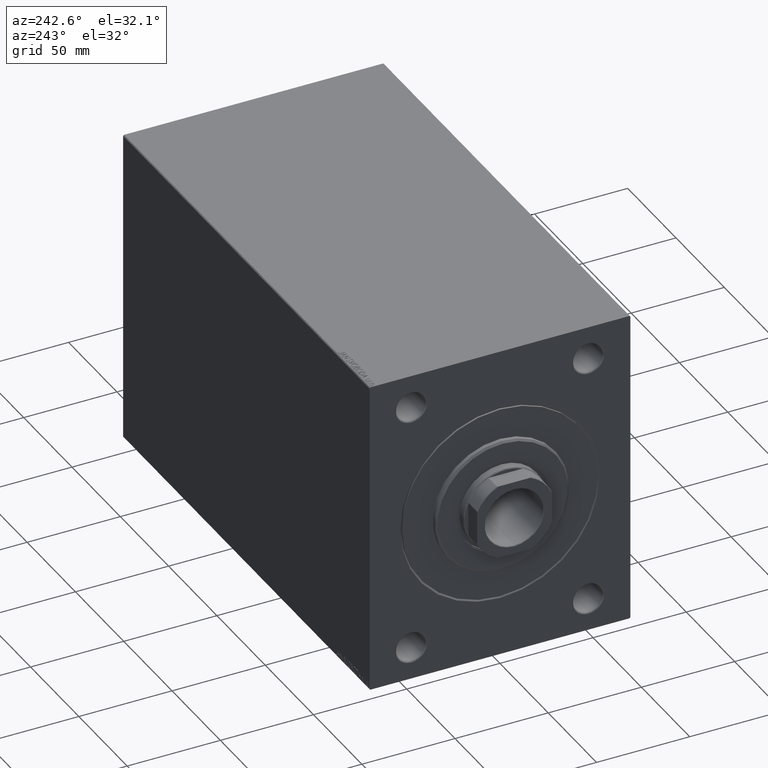
[diagram: clean part render]
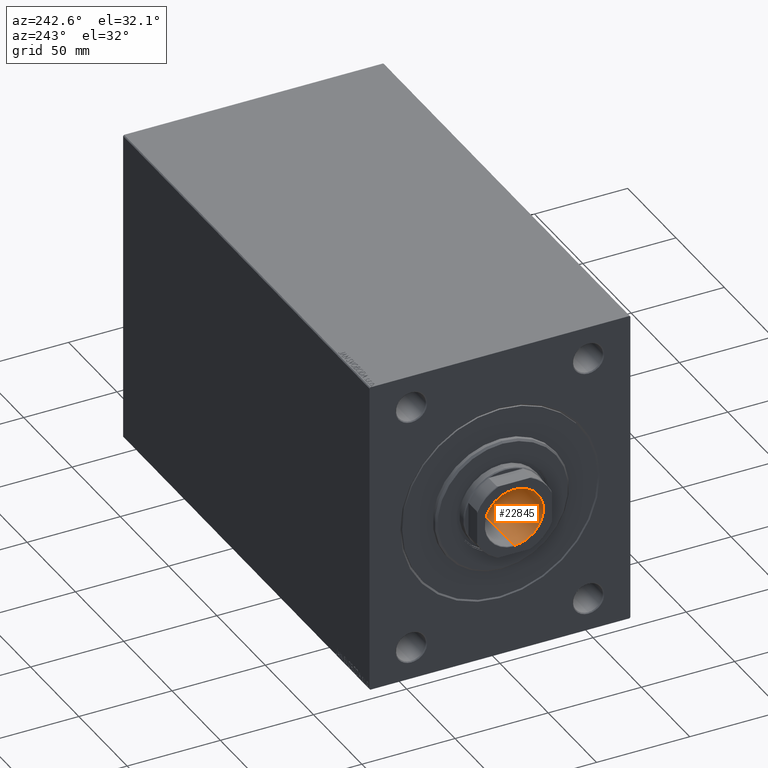
[diagram: same view with one face highlighted and labeled with its STEP entity id]
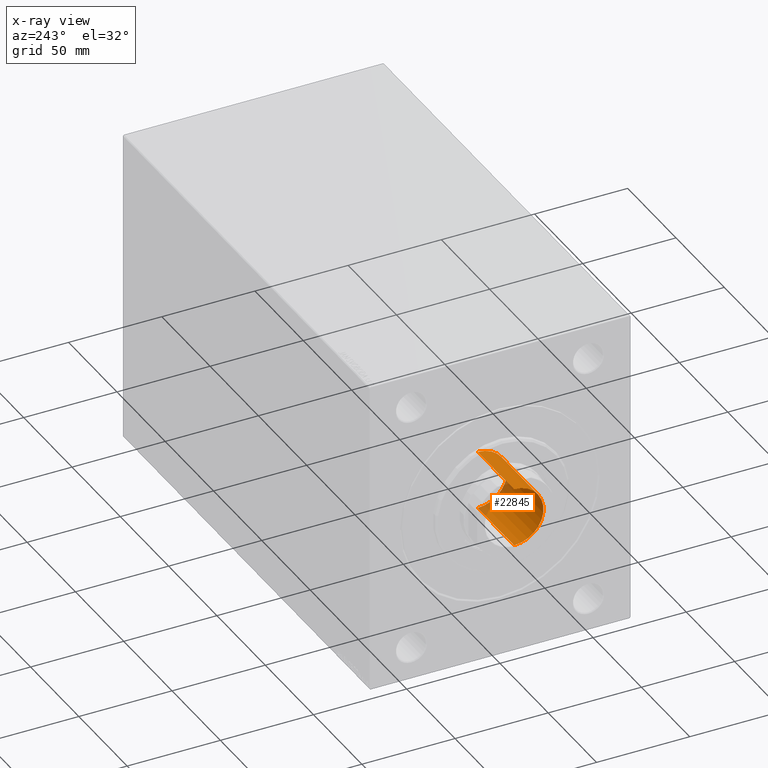
[diagram: x-ray of the same camera — body ghosted, the highlighted face saturated]
A machine part, auxiliary view. The second image highlights one B-rep face of the part: STEP entity #22845.
The next image is the same camera in x-ray: the body ghosted, the highlighted face saturated — about 7% of this face is hidden behind the body in this view.
In plain terms, the highlighted cylindrical surface (edge-blend (fillet) strip) has radius 15.75 mm, axis along (-1, 0, 0).
Its self-contained STEP definition (entity closure, byte-faithful):
#204 = EDGE_LOOP ( 'NONE', ( #32819, #21884, #18745, #21875 ) ) ;
#243 = VERTEX_POINT ( 'NONE', #4157 ) ;
#1033 = CARTESIAN_POINT ( 'NONE',  ( 0.000000000000000000, 0.000000000000000000, 243.6999999999999602 ) ) ;
#1418 = EDGE_CURVE ( 'NONE', #16457, #13972, #41447, .T. ) ;
#4157 = CARTESIAN_POINT ( 'NONE',  ( -15.74999999999999289, 1.928818708657080556E-15, 243.6999999999999602 ) ) ;
#4196 = VERTEX_POINT ( 'NONE', #17361 ) ;
#5031 = FACE_OUTER_BOUND ( 'NONE', #204, .T. ) ;
#11308 = CARTESIAN_POINT ( 'NONE',  ( -15.74999999999999289, 1.928818708657080556E-15, 206.0000000000000284 ) ) ;
#13045 = CARTESIAN_POINT ( 'NONE',  ( -15.74999999999999289, 1.928818708657080556E-15, 244.0000000000000284 ) ) ;
#13972 = VERTEX_POINT ( 'NONE', #18265 ) ;
#14652 = DIRECTION ( 'NONE',  ( 0.000000000000000000, 0.000000000000000000, 1.000000000000000000 ) ) ;
#14843 = CARTESIAN_POINT ( 'NONE',  ( 0.000000000000000000, 0.000000000000000000, 244.0000000000000284 ) ) ;
#16457 = VERTEX_POINT ( 'NONE', #11308 ) ;
#17361 = CARTESIAN_POINT ( 'NONE',  ( 15.74999999999999289, 0.000000000000000000, 243.6999999999999602 ) ) ;
#17551 = AXIS2_PLACEMENT_3D ( 'NONE', #14843, #38319, #38100 ) ;
#18265 = CARTESIAN_POINT ( 'NONE',  ( 15.74999999999999289, 0.000000000000000000, 206.0000000000000284 ) ) ;
#18745 = ORIENTED_EDGE ( 'NONE', *, *, #31394, .T. ) ;
#18876 = DIRECTION ( 'NONE',  ( 1.000000000000000000, 0.000000000000000000, 0.000000000000000000 ) ) ;
#19079 = CARTESIAN_POINT ( 'NONE',  ( 0.000000000000000000, 0.000000000000000000, 206.0000000000000284 ) ) ;
#20166 = CARTESIAN_POINT ( 'NONE',  ( 15.74999999999999289, 0.000000000000000000, 244.0000000000000284 ) ) ;
#21875 = ORIENTED_EDGE ( 'NONE', *, *, #34204, .F. ) ;
#21884 = ORIENTED_EDGE ( 'NONE', *, *, #34047, .T. ) ;
#22053 = AXIS2_PLACEMENT_3D ( 'NONE', #1033, #14652, #18876 ) ;
#22845 = ADVANCED_FACE ( 'NONE', ( #5031 ), #24458, .F. ) ;
#24251 = VECTOR ( 'NONE', #33599, 1000.000000000000000 ) ;
#24458 = CYLINDRICAL_SURFACE ( 'NONE', #17551, 15.74999999999999289 ) ;
#28476 = CIRCLE ( 'NONE', #22053, 15.74999999999999289 ) ;
#29142 = DIRECTION ( 'NONE',  ( -0.000000000000000000, -0.000000000000000000, 1.000000000000000000 ) ) ;
#31394 = EDGE_CURVE ( 'NONE', #243, #4196, #28476, .T. ) ;
#32819 = ORIENTED_EDGE ( 'NONE', *, *, #1418, .F. ) ;
#33599 = DIRECTION ( 'NONE',  ( -0.000000000000000000, -0.000000000000000000, 1.000000000000000000 ) ) ;
#33818 = DIRECTION ( 'NONE',  ( -0.000000000000000000, -0.000000000000000000, 1.000000000000000000 ) ) ;
#34047 = EDGE_CURVE ( 'NONE', #16457, #243, #42342, .T. ) ;
#34204 = EDGE_CURVE ( 'NONE', #13972, #4196, #41183, .T. ) ;
#34300 = AXIS2_PLACEMENT_3D ( 'NONE', #19079, #29142, #39657 ) ;
#38100 = DIRECTION ( 'NONE',  ( 1.000000000000000000, 0.000000000000000000, 0.000000000000000000 ) ) ;
#38319 = DIRECTION ( 'NONE',  ( -0.000000000000000000, -0.000000000000000000, 1.000000000000000000 ) ) ;
#39263 = VECTOR ( 'NONE', #33818, 1000.000000000000000 ) ;
#39657 = DIRECTION ( 'NONE',  ( 1.000000000000000000, 0.000000000000000000, 0.000000000000000000 ) ) ;
#41183 = LINE ( 'NONE', #20166, #39263 ) ;
#41447 = CIRCLE ( 'NONE', #34300, 15.74999999999999289 ) ;
#42342 = LINE ( 'NONE', #13045, #24251 ) ;